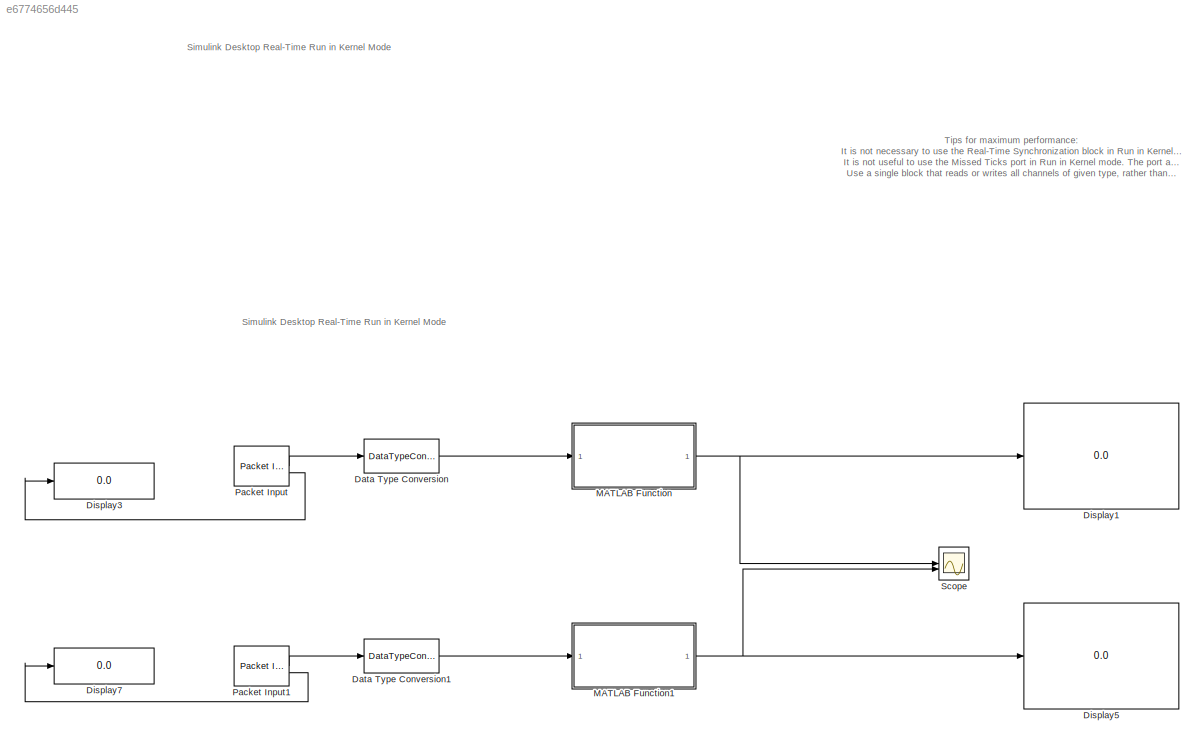
MODEL slx_e6774656d445
KIND model
CONFIG AbsTol = auto
CONFIG EnableMultiTasking = off
CONFIG FixedStep = auto
CONFIG MaxStep = auto
CONFIG MinStep = auto
CONFIG RelTol = 1e-3
CONFIG SampleTimeConstraint = Unconstrained
CONFIG SolverName = VariableStepAuto
CONFIG StartTime = 0.0
CONFIG StopTime = 10.0
BLOCK [DataTypeConversion] Data Type Conversion
  OutDataTypeStr = uint16
  RndMeth = Floor
  SaturateOnIntegerOverflow = off
BLOCK [DataTypeConversion] Data Type Conversion1
  OutDataTypeStr = uint16
  RndMeth = Floor
  SaturateOnIntegerOverflow = off
BLOCK [Display] Display1
  Decimation = 1
  Format = long
BLOCK [Display] Display3
  Decimation = 1
  Format = decimal (Stored Integer)
BLOCK [Display] Display5
  Decimation = 1
  Format = long
BLOCK [Display] Display7
  Decimation = 1
  Format = decimal (Stored Integer)
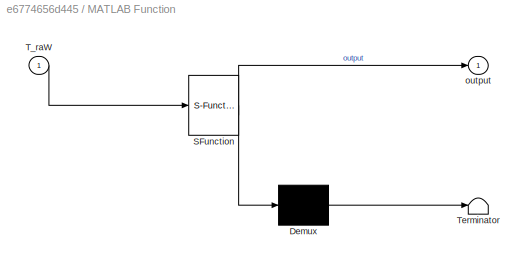
BLOCK [SubSystem] MATLAB Function
  ErrorFcn = Stateflow.Translate.translate
  LibrarySourceBlock = simulink/User-Defined\nFunctions/MATLAB Function
  PermitHierarchicalResolution = ExplicitOnly
  SFBlockType = MATLAB Function
  TreatAsAtomicUnit = on
BLOCK [Demux] MATLAB Function/ Demux 
  Outputs = 1
BLOCK [S-Function] MATLAB Function/ SFunction 
  EnableBusSupport = on
  FunctionName = sf_sfun
  PortCounts = [1 2]
  SFcnIsStateOwnerBlock = off
  SFunctionDeploymentMode = off
  Tag = Stateflow S-Function 2
BLOCK [Terminator] MATLAB Function/ Terminator 
BLOCK [Inport] MATLAB Function/T_raW
BLOCK [Outport] MATLAB Function/output
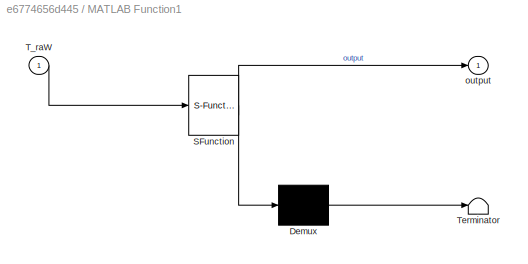
BLOCK [SubSystem] MATLAB Function1
  ErrorFcn = Stateflow.Translate.translate
  LibrarySourceBlock = simulink/User-Defined\nFunctions/MATLAB Function
  PermitHierarchicalResolution = ExplicitOnly
  SFBlockType = MATLAB Function
  TreatAsAtomicUnit = on
BLOCK [Demux] MATLAB Function1/ Demux 
  Outputs = 1
BLOCK [S-Function] MATLAB Function1/ SFunction 
  EnableBusSupport = on
  FunctionName = sf_sfun
  PortCounts = [1 2]
  SFcnIsStateOwnerBlock = off
  SFunctionDeploymentMode = off
  Tag = Stateflow S-Function 1
BLOCK [Terminator] MATLAB Function1/ Terminator 
BLOCK [Inport] MATLAB Function1/T_raW
BLOCK [Outport] MATLAB Function1/output
BLOCK [Reference] Packet Input  REF=sldrtlib/Packet Input
  AttributesFormatString = Serial Port [3]
  SourceBlock = sldrtlib/Packet Input
  SourceType = Simulink Desktop Real-Time Packet Input
BLOCK [Reference] Packet Input1  REF=sldrtlib/Packet Input
  AttributesFormatString = Serial Port [12]
  SourceBlock = sldrtlib/Packet Input
  SourceType = Simulink Desktop Real-Time Packet Input
BLOCK [Scope] Scope
  Floating = off
  NumInputPorts = 2
  ScopeSpecificationString = Simulink.scopes.TimeScopeBlockCfg('CurrentConfiguration', extmgr.ConfigurationSet(extmgr.Configuration('Core','General UI',true),extmgr.Configuration('Core','Source UI',true),extmgr.Configuration('Sources','WiredSimulink',true),extmgr.Configuration('Visuals','Time Domain',true,'SerializedDisplays',{struct('MinYLimReal','3.41209','MaxYLimReal','9.33887','YLabelReal','','MinYLimMag','3.41209','MaxYL...<+1909ch>
ANNOTATION (root): Tips for maximum performance: It is not necessary to use the Real-Time Synchronization block in Run in Kernel mode. The block performs no operation. It is not useful to use the Missed Ticks port in Run in Kernel mode. The port always outputs zero. Use a single block that reads or writes all channels of given type, rather than multiple blocks for one channel each.
ANNOTATION (root): Simulink Desktop Real-Time Run in Kernel Mode
LINE Data Type Conversion1:1 -> MATLAB Function1:1
LINE Data Type Conversion:1 -> MATLAB Function:1
NET MATLAB Function1:1 -> Display5:1, Scope:2
NET MATLAB Function:1 -> Display1:1, Scope:1
LINE Packet Input1:1 -> Data Type Conversion1:1
LINE Packet Input1:2 -> Display7:1
LINE Packet Input:1 -> Data Type Conversion:1
LINE Packet Input:2 -> Display3:1
note: NET lines group one-source signal fan-out (src -> all destinations, sorted); 1:1 wires keep LINE
CHART MATLAB Function1 states=1 transitions=1
  STATE_LABEL 'eML_blk_kernel()'
  STATE_LABEL 'SCRIPT:\nfunction output= fcn(T_raW)\n%%%%%%%%%%%%%%%%%%%%%%%%%\n%数据初始化\nt_uint32=uint32([0,0,0,0]);%uint32型原始数据，无正负\nt_int32=int64([0,0,0,0]);%加了负号后的真正数据\ny=[T_raW ,T_raW];%由于MATLAB不支持指针进行首尾相连，所以两个数据和一块类似首尾相连，应对帧头不在第一位的问题\nflag_star=-1;%帧头的标志\nchannel=4;%通道数\n%%%%%%%%%%%%%%%%%%%%%%%%%\n%判断帧头的位置\nfor i=1:8+channel*4\n    \n    if y(i)==254\n        flag_star=i;\n    end\nend\n%%%%%%%%%%%%%%%%%%%%%%%%%\n%判断帧尾的位置\nif ...<+680ch>'
CHART MATLAB Function states=1 transitions=1
  STATE_LABEL 'eML_blk_kernel()'
  STATE_LABEL 'SCRIPT:\nfunction output= fcn(T_raW)\n%%%%%%%%%%%%%%%%%%%%%%%%%\n%数据初始化\nt_uint32=uint32([0,0,0,0]);%uint32型原始数据，无正负\nt_int32=int64([0,0,0,0]);%加了负号后的真正数据\ny=[T_raW ,T_raW];%由于MATLAB不支持指针进行首尾相连，所以两个数据和一块类似首尾相连，应对帧头不在第一位的问题\nflag_star=-1;%帧头的标志\nchannel=4;%通道数\n%%%%%%%%%%%%%%%%%%%%%%%%%\n%判断帧头的位置\nfor i=1:8+channel*4\n    \n    if y(i)==254\n        flag_star=i;\n    end\nend\n%%%%%%%%%%%%%%%%%%%%%%%%%\n%判断帧尾的位置\nif ...<+680ch>'
CHART  states=0 transitions=0
CHART  states=0 transitions=0
